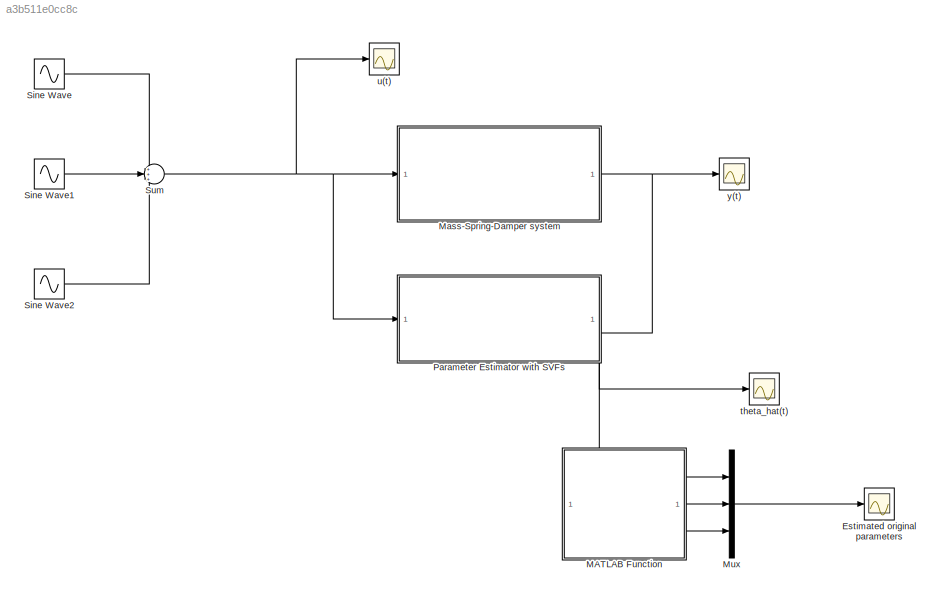
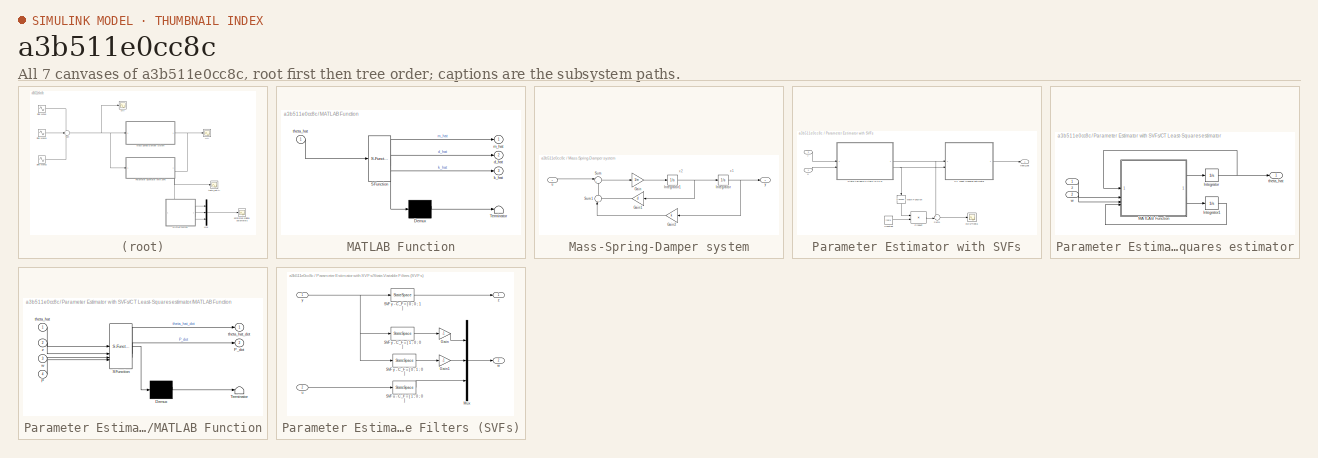
[diagram: thumbnail index - all 7 canvases of the model, root first then tree order]
MODEL slx_a3b511e0cc8c
KIND model
CONFIG AbsTol = auto
CONFIG EnableMultiTasking = off
CONFIG FixedStep = 0.01
CONFIG MaxStep = auto
CONFIG MinStep = auto
CONFIG RelTol = 1e-3
CONFIG SampleTimeConstraint = Unconstrained
CONFIG SolverName = ode3
CONFIG StartTime = 0.0
CONFIG StopTime = 200
BLOCK [Scope] Estimated original parameters
  Floating = off
  NumInputPorts = 1
  ScopeSpecificationString = Simulink.scopes.TimeScopeBlockCfg('CurrentConfiguration', extmgr.ConfigurationSet(extmgr.Configuration('Core','General UI',true),extmgr.Configuration('Core','Source UI',true),extmgr.Configuration('Sources','WiredSimulink',true,'DataLoggingVariableName','ScopeData1'),extmgr.Configuration('Visuals','Time Domain',true,'SerializedDisplays',{struct('MinYLimReal','-8.48231','MaxYLimReal','13.97818','YLa...<+1505ch>
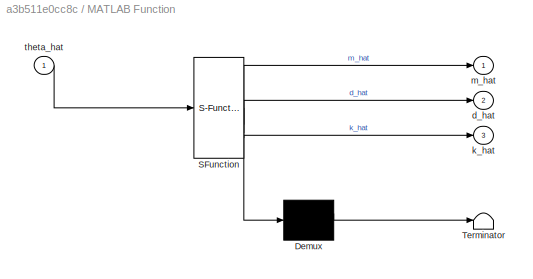
BLOCK [SubSystem] MATLAB Function
  ErrorFcn = Stateflow.Translate.translate
  PermitHierarchicalResolution = ExplicitOnly
  SFBlockType = MATLAB Function
  TreatAsAtomicUnit = on
BLOCK [Demux] MATLAB Function/ Demux 
  Outputs = 1
BLOCK [S-Function] MATLAB Function/ SFunction 
  EnableBusSupport = on
  FunctionName = sf_sfun
  PortCounts = [1 4]
  SFcnIsStateOwnerBlock = off
  SFunctionDeploymentMode = off
  Tag = Stateflow S-Function 2
BLOCK [Terminator] MATLAB Function/ Terminator 
BLOCK [Outport] MATLAB Function/d_hat
  Port = 2
BLOCK [Outport] MATLAB Function/k_hat
  Port = 3
BLOCK [Outport] MATLAB Function/m_hat
BLOCK [Inport] MATLAB Function/theta_hat
BLOCK [SubSystem] Mass-Spring-Damper system
BLOCK [Gain] Mass-Spring-Damper system/Gain
  Gain = 1/m
BLOCK [Gain] Mass-Spring-Damper system/Gain1
  Gain = d
BLOCK [Gain] Mass-Spring-Damper system/Gain2
  Gain = k
BLOCK [Integrator] Mass-Spring-Damper system/Integrator
BLOCK [Integrator] Mass-Spring-Damper system/Integrator1
BLOCK [Sum] Mass-Spring-Damper system/Sum
  Inputs = |+-
BLOCK [Sum] Mass-Spring-Damper system/Sum1
  Inputs = |++
  NameLocation = right
BLOCK [Inport] Mass-Spring-Damper system/u
BLOCK [Outport] Mass-Spring-Damper system/y
BLOCK [Mux] Mux
  DisplayOption = bar
  Inputs = 3
BLOCK [SubSystem] Parameter Estimator with SVFs
  NameLocation = top
  PortSchema = {"entries":[{"content":{"sides":[{"content":{"connectorIds":["In1"]},"type":"ConnectorPlacement.EquallySpacedRectSide","uuid":"701dba22-d81c-4620-a4f9-4eedebec699b"},{"content":{"connectorIds":["In2"],"side":"RIGHT"},"type":"ConnectorPlacement.EquallySpacedRectSide","uuid":"14a753f7-073c-4e1b-870d-b975b59fa292"},{"content":{"connectorIds":[],"side":"TOP"},"type":"ConnectorPlacement.EquallySpacedRe...<+389ch>
BLOCK [SubSystem] Parameter Estimator with SVFs/CT Least-Squares estimator
BLOCK [Integrator] Parameter Estimator with SVFs/CT Least-Squares estimator/Integrator
  InitialCondition = zeros(3,1)
BLOCK [Integrator] Parameter Estimator with SVFs/CT Least-Squares estimator/Integrator1
  InitialCondition = 1000*eye(3)
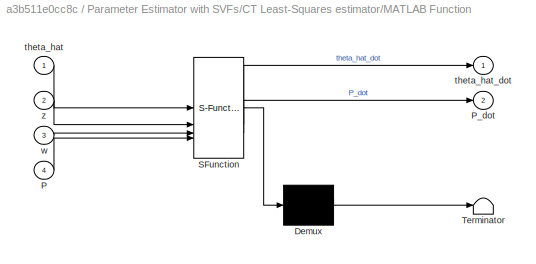
BLOCK [SubSystem] Parameter Estimator with SVFs/CT Least-Squares estimator/MATLAB Function
  ErrorFcn = Stateflow.Translate.translate
  PermitHierarchicalResolution = ExplicitOnly
  SFBlockType = MATLAB Function
  TreatAsAtomicUnit = on
BLOCK [Demux] Parameter Estimator with SVFs/CT Least-Squares estimator/MATLAB Function/ Demux 
  Outputs = 1
BLOCK [S-Function] Parameter Estimator with SVFs/CT Least-Squares estimator/MATLAB Function/ SFunction 
  EnableBusSupport = on
  FunctionName = sf_sfun
  PortCounts = [4 3]
  SFcnIsStateOwnerBlock = off
  SFunctionDeploymentMode = off
  Tag = Stateflow S-Function 1
BLOCK [Terminator] Parameter Estimator with SVFs/CT Least-Squares estimator/MATLAB Function/ Terminator 
BLOCK [Inport] Parameter Estimator with SVFs/CT Least-Squares estimator/MATLAB Function/P
  Port = 4
BLOCK [Outport] Parameter Estimator with SVFs/CT Least-Squares estimator/MATLAB Function/P_dot
  Port = 2
BLOCK [Inport] Parameter Estimator with SVFs/CT Least-Squares estimator/MATLAB Function/theta_hat
BLOCK [Outport] Parameter Estimator with SVFs/CT Least-Squares estimator/MATLAB Function/theta_hat_dot
BLOCK [Inport] Parameter Estimator with SVFs/CT Least-Squares estimator/MATLAB Function/w
  Port = 3
BLOCK [Inport] Parameter Estimator with SVFs/CT Least-Squares estimator/MATLAB Function/z
  Port = 2
BLOCK [Outport] Parameter Estimator with SVFs/CT Least-Squares estimator/theta_hat
BLOCK [Inport] Parameter Estimator with SVFs/CT Least-Squares estimator/w
  Port = 2
BLOCK [Inport] Parameter Estimator with SVFs/CT Least-Squares estimator/z
BLOCK [Constant] Parameter Estimator with SVFs/Constant
  Value = theta
  VectorParams1D = off
BLOCK [Math] Parameter Estimator with SVFs/Math Function
  NameLocation = left
  Operator = transpose
BLOCK [Product] Parameter Estimator with SVFs/Product
  Multiplication = Matrix(*)
BLOCK [SubSystem] Parameter Estimator with SVFs/State-Variable Filters (SVFs)
BLOCK [Gain] Parameter Estimator with SVFs/State-Variable Filters (SVFs)/Gain
  Gain = -1
BLOCK [Gain] Parameter Estimator with SVFs/State-Variable Filters (SVFs)/Gain1
  Gain = -1
BLOCK [Mux] Parameter Estimator with SVFs/State-Variable Filters (SVFs)/Mux
  DisplayOption = bar
  Inputs = 3
BLOCK [StateSpace] Parameter Estimator with SVFs/State-Variable Filters (SVFs)/SVF u - C_F = [ 1 ; 0 ; 0 ]
  A = A_F
  B = B_F
  C = C_F0
  D = 0
  InitialCondition = zeros(3,1)
BLOCK [StateSpace] Parameter Estimator with SVFs/State-Variable Filters (SVFs)/SVF y - C_F = [ 0 ; 0 ; 1 ]
  A = A_F
  B = B_F
  C = C_F2
  D = 0
  InitialCondition = ones(3,1)
BLOCK [StateSpace] Parameter Estimator with SVFs/State-Variable Filters (SVFs)/SVF y - C_F = [ 0 ; 1 ; 0 ]
  A = A_F
  B = B_F
  C = C_F1
  D = 0
  InitialCondition = zeros(3,1)
BLOCK [StateSpace] Parameter Estimator with SVFs/State-Variable Filters (SVFs)/SVF y - C_F = [ 1 ; 0 ; 0 ]
  A = A_F
  B = B_F
  C = C_F0
  D = 0
  InitialCondition = zeros(3,1)
BLOCK [Inport] Parameter Estimator with SVFs/State-Variable Filters (SVFs)/u
  Port = 2
BLOCK [Outport] Parameter Estimator with SVFs/State-Variable Filters (SVFs)/w
  Port = 2
BLOCK [Inport] Parameter Estimator with SVFs/State-Variable Filters (SVFs)/y
BLOCK [Outport] Parameter Estimator with SVFs/State-Variable Filters (SVFs)/z
BLOCK [Sum] Parameter Estimator with SVFs/Sum1
  Inputs = +-|
BLOCK [Scope] Parameter Estimator with SVFs/e=z-w'*theta
  Floating = off
  NumInputPorts = 1
  ScopeSpecificationString = Simulink.scopes.TimeScopeBlockCfg('CurrentConfiguration', extmgr.ConfigurationSet(extmgr.Configuration('Core','General UI',true),extmgr.Configuration('Core','Source UI',true),extmgr.Configuration('Sources','WiredSimulink',true,'DataLoggingVariableName','ScopeData1'),extmgr.Configuration('Visuals','Time Domain',true,'SerializedDisplays',{struct('MinYLimReal','-35.90883','MaxYLimReal','13.39854','YL...<+1398ch>
BLOCK [Outport] Parameter Estimator with SVFs/theta_hat
BLOCK [Inport] Parameter Estimator with SVFs/u
BLOCK [Inport] Parameter Estimator with SVFs/y
  Port = 2
BLOCK [Sin] Sine Wave
  Phase = pi*rand
  SampleTime = 0
BLOCK [Sin] Sine Wave1
  Frequency = 2
  Phase = pi/5
  SampleTime = 0
BLOCK [Sin] Sine Wave2
  Frequency = 0.5
  Phase = pi/3
  SampleTime = 0
BLOCK [Sum] Sum
  Inputs = +++
BLOCK [Scope] theta_hat(t)
  Floating = off
  NumInputPorts = 1
  ScopeSpecificationString = Simulink.scopes.TimeScopeBlockCfg('CurrentConfiguration', extmgr.ConfigurationSet(extmgr.Configuration('Core','General UI',true),extmgr.Configuration('Core','Source UI',true),extmgr.Configuration('Sources','WiredSimulink',true,'DataLoggingVariableName','ScopeData1'),extmgr.Configuration('Visuals','Time Domain',true,'SerializedDisplays',{struct('MinYLimReal','-0.59191','MaxYLimReal','1.01603','YLab...<+1531ch>
BLOCK [Scope] u(t)
  Floating = off
  NumInputPorts = 1
  ScopeSpecificationString = Simulink.scopes.TimeScopeBlockCfg('CurrentConfiguration', extmgr.ConfigurationSet(extmgr.Configuration('Core','General UI',true),extmgr.Configuration('Core','Source UI',true),extmgr.Configuration('Sources','WiredSimulink',true,'DataLoggingVariableName','ScopeData1'),extmgr.Configuration('Visuals','Time Domain',true,'SerializedDisplays',{struct('MinYLimReal','-2.74767','MaxYLimReal','3.39984','YLab...<+1390ch>
BLOCK [Scope] y(t)
  Floating = off
  NumInputPorts = 1
  ScopeSpecificationString = Simulink.scopes.TimeScopeBlockCfg('CurrentConfiguration', extmgr.ConfigurationSet(extmgr.Configuration('Core','General UI',true),extmgr.Configuration('Core','Source UI',true),extmgr.Configuration('Sources','WiredSimulink',true),extmgr.Configuration('Visuals','Time Domain',true,'SerializedDisplays',{struct('MinYLimReal','-1.03966','MaxYLimReal','1.2725','YLabelReal','','MinYLimMag','0.00000','MaxYL...<+1370ch>
ANNOTATION Mass-Spring-Damper system: x1
ANNOTATION Mass-Spring-Damper system: x2
LINE MATLAB Function:1 -> Mux:1
LINE MATLAB Function:2 -> Mux:2
LINE MATLAB Function:3 -> Mux:3
LINE Mass-Spring-Damper system/Gain1:1 -> Mass-Spring-Damper system/Sum1:2
LINE Mass-Spring-Damper system/Gain2:1 -> Mass-Spring-Damper system/Sum1:1
LINE Mass-Spring-Damper system/Gain:1 -> Mass-Spring-Damper system/Integrator1:1
NET Mass-Spring-Damper system/Integrator1:1 -> Mass-Spring-Damper system/Gain1:1, Mass-Spring-Damper system/Integrator:1
NET Mass-Spring-Damper system/Integrator:1 -> Mass-Spring-Damper system/Gain2:1, Mass-Spring-Damper system/y:1
LINE Mass-Spring-Damper system/Sum1:1 -> Mass-Spring-Damper system/Sum:2
LINE Mass-Spring-Damper system/Sum:1 -> Mass-Spring-Damper system/Gain:1
LINE Mass-Spring-Damper system/u:1 -> Mass-Spring-Damper system/Sum:1
NET Mass-Spring-Damper system:1 -> Parameter Estimator with SVFs:2, y(t):1
LINE Mux:1 -> Estimated original parameters:1
LINE Parameter Estimator with SVFs/CT Least-Squares estimator/Integrator1:1 -> Parameter Estimator with SVFs/CT Least-Squares estimator/MATLAB Function:4
NET Parameter Estimator with SVFs/CT Least-Squares estimator/Integrator:1 -> Parameter Estimator with SVFs/CT Least-Squares estimator/MATLAB Function:1, Parameter Estimator with SVFs/CT Least-Squares estimator/theta_hat:1
LINE Parameter Estimator with SVFs/CT Least-Squares estimator/MATLAB Function:1 -> Parameter Estimator with SVFs/CT Least-Squares estimator/Integrator:1
LINE Parameter Estimator with SVFs/CT Least-Squares estimator/MATLAB Function:2 -> Parameter Estimator with SVFs/CT Least-Squares estimator/Integrator1:1
LINE Parameter Estimator with SVFs/CT Least-Squares estimator/w:1 -> Parameter Estimator with SVFs/CT Least-Squares estimator/MATLAB Function:3
LINE Parameter Estimator with SVFs/CT Least-Squares estimator/z:1 -> Parameter Estimator with SVFs/CT Least-Squares estimator/MATLAB Function:2
LINE Parameter Estimator with SVFs/CT Least-Squares estimator:1 -> Parameter Estimator with SVFs/theta_hat:1
LINE Parameter Estimator with SVFs/Constant:1 -> Parameter Estimator with SVFs/Product:2
LINE Parameter Estimator with SVFs/Math Function:1 -> Parameter Estimator with SVFs/Product:1
LINE Parameter Estimator with SVFs/Product:1 -> Parameter Estimator with SVFs/Sum1:2
LINE Parameter Estimator with SVFs/State-Variable Filters (SVFs)/Gain1:1 -> Parameter Estimator with SVFs/State-Variable Filters (SVFs)/Mux:2
LINE Parameter Estimator with SVFs/State-Variable Filters (SVFs)/Gain:1 -> Parameter Estimator with SVFs/State-Variable Filters (SVFs)/Mux:1
LINE Parameter Estimator with SVFs/State-Variable Filters (SVFs)/Mux:1 -> Parameter Estimator with SVFs/State-Variable Filters (SVFs)/w:1
LINE Parameter Estimator with SVFs/State-Variable Filters (SVFs)/SVF u - C_F = [ 1 ; 0 ; 0 ]:1 -> Parameter Estimator with SVFs/State-Variable Filters (SVFs)/Mux:3
LINE Parameter Estimator with SVFs/State-Variable Filters (SVFs)/SVF y - C_F = [ 0 ; 0 ; 1 ]:1 -> Parameter Estimator with SVFs/State-Variable Filters (SVFs)/z:1
LINE Parameter Estimator with SVFs/State-Variable Filters (SVFs)/SVF y - C_F = [ 0 ; 1 ; 0 ]:1 -> Parameter Estimator with SVFs/State-Variable Filters (SVFs)/Gain1:1
LINE Parameter Estimator with SVFs/State-Variable Filters (SVFs)/SVF y - C_F = [ 1 ; 0 ; 0 ]:1 -> Parameter Estimator with SVFs/State-Variable Filters (SVFs)/Gain:1
LINE Parameter Estimator with SVFs/State-Variable Filters (SVFs)/u:1 -> Parameter Estimator with SVFs/State-Variable Filters (SVFs)/SVF u - C_F = [ 1 ; 0 ; 0 ]:1
NET Parameter Estimator with SVFs/State-Variable Filters (SVFs)/y:1 -> Parameter Estimator with SVFs/State-Variable Filters (SVFs)/SVF y - C_F = [ 0 ; 0 ; 1 ]:1, Parameter Estimator with SVFs/State-Variable Filters (SVFs)/SVF y - C_F = [ 0 ; 1 ; 0 ]:1, Parameter Estimator with SVFs/State-Variable Filters (SVFs)/SVF y - C_F = [ 1 ; 0 ; 0 ]:1
NET Parameter Estimator with SVFs/State-Variable Filters (SVFs):1 -> Parameter Estimator with SVFs/CT Least-Squares estimator:1, Parameter Estimator with SVFs/Sum1:1
NET Parameter Estimator with SVFs/State-Variable Filters (SVFs):2 -> Parameter Estimator with SVFs/CT Least-Squares estimator:2, Parameter Estimator with SVFs/Math Function:1
LINE Parameter Estimator with SVFs/Sum1:1 -> Parameter Estimator with SVFs/e=z-w'*theta:1
LINE Parameter Estimator with SVFs/u:1 -> Parameter Estimator with SVFs/State-Variable Filters (SVFs):2
LINE Parameter Estimator with SVFs/y:1 -> Parameter Estimator with SVFs/State-Variable Filters (SVFs):1
NET Parameter Estimator with SVFs:1 -> MATLAB Function:1, theta_hat(t):1
LINE Sine Wave1:1 -> Sum:2
LINE Sine Wave2:1 -> Sum:3
LINE Sine Wave:1 -> Sum:1
NET Sum:1 -> Mass-Spring-Damper system:1, Parameter Estimator with SVFs:1, u(t):1
note: NET lines group one-source signal fan-out (src -> all destinations, sorted); 1:1 wires keep LINE
CHART Parameter Estimator with SVFs/CT Least-Squares estimator/MATLAB Function states=1 transitions=1
  STATE_LABEL 'eML_blk_kernel()'
  STATE_LABEL "SCRIPT:\nfunction [theta_hat_dot,P_dot] = fcn(theta_hat,z,w,P)\n\n%theta_hat_dot = P*w*(z - w'*theta_hat);\n%P_dot = -P*w*w'*P;\n\n% normalized version\ntheta_hat_dot = P*w/(1+w'*P*w)*(z - w'*theta_hat);\nP_dot = -P*w*w'/(1+w'*P*w)*P;"
CHART MATLAB Function states=1 transitions=1
  STATE_LABEL 'eML_blk_kernel()'
  STATE_LABEL 'SCRIPT:\nfunction [m_hat,d_hat,k_hat] = fcn(theta_hat)\n\na0_hat = theta_hat(1);\na1_hat = theta_hat(2);\nb_hat = theta_hat(3);\n\nif abs(b_hat)<= 0.01 % to avoid singularities\n    m_hat = 0;\n    d_hat = 0;\n    k_hat = 0;\nelse \n    m_hat = 1/b_hat;\n    d_hat = a1_hat * m_hat;\n    k_hat = a0_hat * m_hat;\nend\n\n\n\n\n'
CHART  states=0 transitions=0
CHART  states=0 transitions=0
